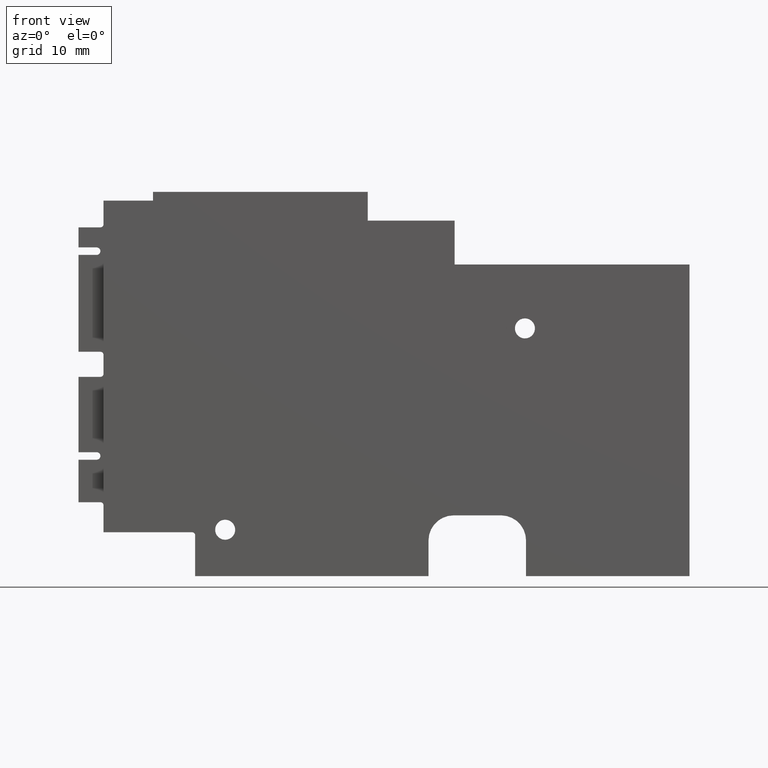
[diagram: clean part render]
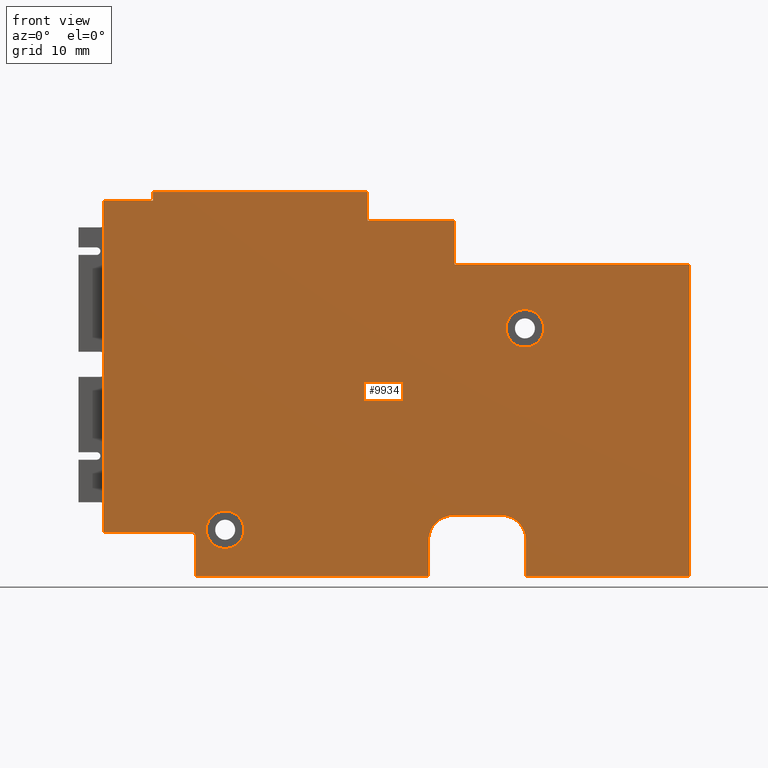
[diagram: same view with one face highlighted and labeled with its STEP entity id]
A machine part, front view. The second image highlights one B-rep face of the part: STEP entity #9934.
In plain terms, the highlighted planar face has unit normal (0, -1, -0).
Its self-contained STEP definition (entity closure, byte-faithful):
#88 = CARTESIAN_POINT ( 'NONE',  ( 399999.9999999998836, -2.449999997205978719, -31.52000000011412340 ) ) ;
#285 = DIRECTION ( 'NONE',  ( 3.965082230805694137E-15, 2.522060485275691362E-29, 1.000000000000000000 ) ) ;
#318 = ORIENTED_EDGE ( 'NONE', *, *, #2596, .T. ) ;
#423 = DIRECTION ( 'NONE',  ( 6.982658610649884917E-15, -1.000000000000000000, -2.466210728113322931E-30 ) ) ;
#425 = CARTESIAN_POINT ( 'NONE',  ( 15.78217238142087808, -2.449999999998925482, 291545.0000000016298 ) ) ;
#511 = CARTESIAN_POINT ( 'NONE',  ( 399999.9999999999418, -2.449999997205978719, 25.19822415473527144 ) ) ;
#527 = DIRECTION ( 'NONE',  ( 6.088502786939280353E-16, 6.717604369232062362E-30, -1.000000000000000000 ) ) ;
#681 = CARTESIAN_POINT ( 'NONE',  ( 1.710812173015827517E-14, -2.449999999999039613, -1.109794827648627142E-30 ) ) ;
#938 = VERTEX_POINT ( 'NONE', #25757 ) ;
#944 = CARTESIAN_POINT ( 'NONE',  ( -25.60330062891227954, -2.449999999999216804, -31.52000000000043656 ) ) ;
#1403 = CARTESIAN_POINT ( 'NONE',  ( 399999.9999999999418, -2.449999997205978719, 29.78260090168305396 ) ) ;
#1556 = LINE ( 'NONE', #3627, #3529 ) ;
#1710 = VERTEX_POINT ( 'NONE', #2856 ) ;
#1759 = ORIENTED_EDGE ( 'NONE', *, *, #12353, .T. ) ;
#1766 = LINE ( 'NONE', #27318, #11667 ) ;
#1793 = ORIENTED_EDGE ( 'NONE', *, *, #13501, .T. ) ;
#1824 = VERTEX_POINT ( 'NONE', #20097 ) ;
#2211 = DIRECTION ( 'NONE',  ( 6.982658610649884917E-15, -1.000000000000000000, -2.466210728113322931E-30 ) ) ;
#2353 = FACE_BOUND ( 'NONE', #12482, .T. ) ;
#2462 = DIRECTION ( 'NONE',  ( -2.026291678658004235E-14, -1.390228196485818964E-28, -1.000000000000000000 ) ) ;
#2596 = EDGE_CURVE ( 'NONE', #22211, #1824, #22719, .T. ) ;
#2624 = VERTEX_POINT ( 'NONE', #26656 ) ;
#2753 = FACE_BOUND ( 'NONE', #5594, .T. ) ;
#2856 = CARTESIAN_POINT ( 'NONE',  ( 1.930106652480390039, -2.449999999999028955, 25.19822415473527144 ) ) ;
#2936 = VECTOR ( 'NONE', #24469, 1000.000000000000000 ) ;
#2981 = EDGE_CURVE ( 'NONE', #21947, #4939, #3669, .T. ) ;
#3286 = DIRECTION ( 'NONE',  ( -1.000000000000000000, -6.982658610649885705E-15, 0.000000000000000000 ) ) ;
#3369 = VERTEX_POINT ( 'NONE', #8429 ) ;
#3507 = CARTESIAN_POINT ( 'NONE',  ( -26.10330062890398040, -2.449999999999224354, -24.51358310241857907 ) ) ;
#3509 = VERTEX_POINT ( 'NONE', #11072 ) ;
#3529 = VECTOR ( 'NONE', #14657, 1000.000000000000000 ) ;
#3627 = CARTESIAN_POINT ( 'NONE',  ( 399999.9999999999418, -2.449999997205978719, 18.19822415473026922 ) ) ;
#3669 = LINE ( 'NONE', #88, #7671 ) ;
#3703 = CARTESIAN_POINT ( 'NONE',  ( 15.78217238022716629, -2.449999999998932143, 18.19822415473026922 ) ) ;
#3737 = EDGE_CURVE ( 'NONE', #9016, #23058, #24857, .T. ) ;
#3762 = ORIENTED_EDGE ( 'NONE', *, *, #10475, .T. ) ;
#3907 = ORIENTED_EDGE ( 'NONE', *, *, #22531, .T. ) ;
#3935 = VERTEX_POINT ( 'NONE', #26797 ) ;
#4021 = CARTESIAN_POINT ( 'NONE',  ( 53.25872753246585489, -2.449999999998661693, 18.19822415473026922 ) ) ;
#4041 = EDGE_CURVE ( 'NONE', #4939, #20488, #24678, .T. ) ;
#4186 = CARTESIAN_POINT ( 'NONE',  ( 23.17835815693734958, -2.449999999998869527, -25.82164184305287336 ) ) ;
#4589 = EDGE_CURVE ( 'NONE', #3369, #3935, #24247, .T. ) ;
#4841 = VERTEX_POINT ( 'NONE', #23562 ) ;
#4939 = VERTEX_POINT ( 'NONE', #20199 ) ;
#5211 = LINE ( 'NONE', #8905, #9046 ) ;
#5301 = CIRCLE ( 'NONE', #19643, 2.999999999999999112 ) ;
#5546 = VERTEX_POINT ( 'NONE', #3703 ) ;
#5591 = ORIENTED_EDGE ( 'NONE', *, *, #26680, .T. ) ;
#5594 = EDGE_LOOP ( 'NONE', ( #16691, #8174 ) ) ;
#5762 = CARTESIAN_POINT ( 'NONE',  ( 1.930106652480390039, -2.449999999999022293, 291545.0000000000000 ) ) ;
#5948 = CARTESIAN_POINT ( 'NONE',  ( 15.62164184304037917, -2.449999999998925482, -21.82164184305287336 ) ) ;
#6164 = EDGE_CURVE ( 'NONE', #938, #1710, #9167, .T. ) ;
#6387 = VERTEX_POINT ( 'NONE', #9377 ) ;
#6612 = CARTESIAN_POINT ( 'NONE',  ( -20.81540116738302970, -2.449999999999184830, -24.11560059209304541 ) ) ;
#6850 = VECTOR ( 'NONE', #16761, 1000.000000000000000 ) ;
#6869 = VECTOR ( 'NONE', #21177, 1000.000000000000000 ) ;
#7242 = AXIS2_PLACEMENT_3D ( 'NONE', #23224, #14553, #16252 ) ;
#7248 = DIRECTION ( 'NONE',  ( 1.000000000000000000, 6.982658610649885705E-15, 0.000000000000000000 ) ) ;
#7589 = CARTESIAN_POINT ( 'NONE',  ( -40.21782761969916464, -2.449999999999313616, 291545.0000000000000 ) ) ;
#7671 = VECTOR ( 'NONE', #25064, 1000.000000000000000 ) ;
#8026 = LINE ( 'NONE', #14261, #26220 ) ;
#8098 = AXIS2_PLACEMENT_3D ( 'NONE', #681, #423, #17733 ) ;
#8174 = ORIENTED_EDGE ( 'NONE', *, *, #15430, .F. ) ;
#8336 = CIRCLE ( 'NONE', #25721, 0.5000000000000004441 ) ;
#8429 = CARTESIAN_POINT ( 'NONE',  ( -17.81540116738303325, -2.449999999999164402, -24.11560059209304541 ) ) ;
#8483 = ORIENTED_EDGE ( 'NONE', *, *, #23591, .F. ) ;
#8741 = CIRCLE ( 'NONE', #26571, 2.999999999999995559 ) ;
#8905 = CARTESIAN_POINT ( 'NONE',  ( -25.60330062300408827, -2.449999999999216804, 291545.0000000081491 ) ) ;
#9016 = VERTEX_POINT ( 'NONE', #15285 ) ;
#9046 = VECTOR ( 'NONE', #2462, 1000.000000000000000 ) ;
#9065 = VECTOR ( 'NONE', #3286, 1000.000000000000000 ) ;
#9167 = LINE ( 'NONE', #511, #12304 ) ;
#9377 = CARTESIAN_POINT ( 'NONE',  ( 23.17835815694024859, -2.449999999998880629, -21.82164184307566757 ) ) ;
#9409 = VERTEX_POINT ( 'NONE', #3507 ) ;
#9934 = ADVANCED_FACE ( 'NONE', ( #2753, #2353, #11285 ), #19834, .T. ) ;
#10142 = EDGE_CURVE ( 'NONE', #23058, #22211, #1766, .T. ) ;
#10154 = VECTOR ( 'NONE', #22798, 1000.000000000000000 ) ;
#10182 = VERTEX_POINT ( 'NONE', #17287 ) ;
#10424 = ORIENTED_EDGE ( 'NONE', *, *, #6164, .T. ) ;
#10455 = EDGE_CURVE ( 'NONE', #11027, #3509, #19302, .T. ) ;
#10475 = EDGE_CURVE ( 'NONE', #1710, #9016, #23091, .T. ) ;
#10485 = CARTESIAN_POINT ( 'NONE',  ( -32.31950703496977439, -2.449999999999267875, 29.78260090168305396 ) ) ;
#10670 = DIRECTION ( 'NONE',  ( 1.000000000000000000, 6.938893903907228378E-15, 0.000000000000000000 ) ) ;
#10704 = ORIENTED_EDGE ( 'NONE', *, *, #24980, .F. ) ;
#10896 = AXIS2_PLACEMENT_3D ( 'NONE', #6612, #15121, #23636 ) ;
#11027 = VERTEX_POINT ( 'NONE', #12707 ) ;
#11072 = CARTESIAN_POINT ( 'NONE',  ( 24.00000000000113332, -2.449999999998871747, 8.000000003283171068 ) ) ;
#11238 = ORIENTED_EDGE ( 'NONE', *, *, #14912, .F. ) ;
#11285 = FACE_OUTER_BOUND ( 'NONE', #21047, .T. ) ;
#11291 = CARTESIAN_POINT ( 'NONE',  ( 399999.9999999999418, -2.449999997205978719, -24.51358310241857907 ) ) ;
#11631 = LINE ( 'NONE', #7589, #2936 ) ;
#11667 = VECTOR ( 'NONE', #27186, 1000.000000000000000 ) ;
#11763 = ORIENTED_EDGE ( 'NONE', *, *, #21920, .T. ) ;
#11799 = EDGE_CURVE ( 'NONE', #5546, #938, #27488, .T. ) ;
#11853 = CARTESIAN_POINT ( 'NONE',  ( 27.17835815696634683, -2.449999999998841993, -31.52000000000043656 ) ) ;
#11939 = VECTOR ( 'NONE', #7248, 1000.000000000000000 ) ;
#12157 = DIRECTION ( 'NONE',  ( 1.000000000000000000, 6.938893903907228378E-15, 0.000000000000000000 ) ) ;
#12254 = VERTEX_POINT ( 'NONE', #15580 ) ;
#12304 = VECTOR ( 'NONE', #15435, 1000.000000000000000 ) ;
#12353 = EDGE_CURVE ( 'NONE', #12254, #21052, #5211, .T. ) ;
#12482 = EDGE_LOOP ( 'NONE', ( #13130, #10704 ) ) ;
#12572 = CARTESIAN_POINT ( 'NONE',  ( -20.81540116738302970, -2.449999999999184830, -24.11560059209304541 ) ) ;
#12707 = CARTESIAN_POINT ( 'NONE',  ( 30.00000000000113332, -2.449999999998830447, 8.000000003283171068 ) ) ;
#12948 = ORIENTED_EDGE ( 'NONE', *, *, #11799, .T. ) ;
#13130 = ORIENTED_EDGE ( 'NONE', *, *, #4589, .F. ) ;
#13242 = LINE ( 'NONE', #11291, #11939 ) ;
#13501 = EDGE_CURVE ( 'NONE', #10182, #21947, #23684, .T. ) ;
#13526 = CARTESIAN_POINT ( 'NONE',  ( 399999.9999999999418, -2.449999997205978719, -21.82164184307566757 ) ) ;
#13727 = CIRCLE ( 'NONE', #23105, 4.000000000000000000 ) ;
#13910 = CARTESIAN_POINT ( 'NONE',  ( 399999.9999999999418, -2.449999997205978719, 28.38076838889946885 ) ) ;
#14053 = EDGE_CURVE ( 'NONE', #20488, #5546, #1556, .T. ) ;
#14261 = CARTESIAN_POINT ( 'NONE',  ( 11.62164184222547192, -2.449999999998953015, 291544.9999999989523 ) ) ;
#14272 = EDGE_CURVE ( 'NONE', #12254, #9409, #8336, .T. ) ;
#14331 = VECTOR ( 'NONE', #24757, 1000.000000000000000 ) ;
#14340 = ORIENTED_EDGE ( 'NONE', *, *, #3737, .T. ) ;
#14544 = DIRECTION ( 'NONE',  ( -2.739826254122683012E-15, -2.159748211314769329E-29, 1.000000000000000000 ) ) ;
#14553 = DIRECTION ( 'NONE',  ( 6.982658610649884917E-15, -1.000000000000000000, -2.466210728113322931E-30 ) ) ;
#14657 = DIRECTION ( 'NONE',  ( -1.000000000000000000, -6.982658610649885705E-15, 0.000000000000000000 ) ) ;
#14704 = EDGE_CURVE ( 'NONE', #2624, #15329, #8026, .T. ) ;
#14912 = EDGE_CURVE ( 'NONE', #16243, #15329, #13727, .T. ) ;
#15120 = DIRECTION ( 'NONE',  ( 6.982658610649884917E-15, -1.000000000000000000, -2.466210728113322931E-30 ) ) ;
#15121 = DIRECTION ( 'NONE',  ( 6.982658610649884917E-15, -1.000000000000000000, -2.466210728113322931E-30 ) ) ;
#15285 = CARTESIAN_POINT ( 'NONE',  ( 1.930106652480390039, -2.449999999999022293, 29.78260090168305396 ) ) ;
#15329 = VERTEX_POINT ( 'NONE', #26469 ) ;
#15430 = EDGE_CURVE ( 'NONE', #3509, #11027, #5301, .T. ) ;
#15435 = DIRECTION ( 'NONE',  ( -1.000000000000000000, -6.982658610649885705E-15, 0.000000000000000000 ) ) ;
#15513 = DIRECTION ( 'NONE',  ( 1.000000000000000000, 6.938893903907222067E-15, 0.000000000000000000 ) ) ;
#15523 = VECTOR ( 'NONE', #22064, 1000.000000000000000 ) ;
#15580 = CARTESIAN_POINT ( 'NONE',  ( -25.60330062892264635, -2.449999999999213252, -25.01358310242868299 ) ) ;
#15989 = ORIENTED_EDGE ( 'NONE', *, *, #22193, .T. ) ;
#16082 = ORIENTED_EDGE ( 'NONE', *, *, #14704, .T. ) ;
#16243 = VERTEX_POINT ( 'NONE', #5948 ) ;
#16252 = DIRECTION ( 'NONE',  ( 1.000000000000000000, 6.938893903907230744E-15, 0.000000000000000000 ) ) ;
#16356 = DIRECTION ( 'NONE',  ( 6.982658610649884917E-15, -1.000000000000000000, -2.466210728113322931E-30 ) ) ;
#16691 = ORIENTED_EDGE ( 'NONE', *, *, #10455, .F. ) ;
#16761 = DIRECTION ( 'NONE',  ( -1.000000000000000000, -6.982658610649885705E-15, 0.000000000000000000 ) ) ;
#17141 = CARTESIAN_POINT ( 'NONE',  ( 27.17835815678881772, -2.449999999998841993, 291544.9999999997672 ) ) ;
#17287 = CARTESIAN_POINT ( 'NONE',  ( 27.17835815693734958, -2.449999999998841993, -25.82164184305287336 ) ) ;
#17411 = VECTOR ( 'NONE', #527, 1000.000000000000000 ) ;
#17733 = DIRECTION ( 'NONE',  ( 1.000000000000000000, 6.982658610649884917E-15, 0.000000000000000000 ) ) ;
#17865 = CARTESIAN_POINT ( 'NONE',  ( 27.00000000000113332, -2.449999999998851319, 8.000000003283171068 ) ) ;
#18092 = ORIENTED_EDGE ( 'NONE', *, *, #10142, .T. ) ;
#18495 = ORIENTED_EDGE ( 'NONE', *, *, #2981, .T. ) ;
#19302 = CIRCLE ( 'NONE', #7242, 2.999999999999999112 ) ;
#19310 = ORIENTED_EDGE ( 'NONE', *, *, #14053, .T. ) ;
#19643 = AXIS2_PLACEMENT_3D ( 'NONE', #17865, #23705, #19694 ) ;
#19694 = DIRECTION ( 'NONE',  ( 1.000000000000000000, 6.938893903907230744E-15, 0.000000000000000000 ) ) ;
#19834 = PLANE ( 'NONE',  #8098 ) ;
#20097 = CARTESIAN_POINT ( 'NONE',  ( -40.21782761975600806, -2.449999999999322942, 28.38076838889946885 ) ) ;
#20199 = CARTESIAN_POINT ( 'NONE',  ( 53.25872753246585489, -2.449999999998670130, -31.52000000000771607 ) ) ;
#20488 = VERTEX_POINT ( 'NONE', #4021 ) ;
#20529 = CARTESIAN_POINT ( 'NONE',  ( 53.25872753246585489, -2.449999999998661693, 291545.0000000000000 ) ) ;
#21047 = EDGE_LOOP ( 'NONE', ( #5591, #15989, #23611, #1759, #3907, #16082, #11238, #11763, #8483, #1793, #18495, #26678, #19310, #12948, #10424, #3762, #14340, #18092, #318 ) ) ;
#21052 = VERTEX_POINT ( 'NONE', #944 ) ;
#21177 = DIRECTION ( 'NONE',  ( 0.000000000000000000, -2.466210728113323281E-30, 1.000000000000000000 ) ) ;
#21910 = CARTESIAN_POINT ( 'NONE',  ( -32.31950703496977439, -2.449999999999258549, 28.38076838889946885 ) ) ;
#21920 = EDGE_CURVE ( 'NONE', #16243, #6387, #22466, .T. ) ;
#21947 = VERTEX_POINT ( 'NONE', #11853 ) ;
#22064 = DIRECTION ( 'NONE',  ( 1.000000000000000000, 6.982658610649885705E-15, 0.000000000000000000 ) ) ;
#22193 = EDGE_CURVE ( 'NONE', #4841, #9409, #13242, .T. ) ;
#22211 = VERTEX_POINT ( 'NONE', #21910 ) ;
#22466 = LINE ( 'NONE', #13526, #15523 ) ;
#22531 = EDGE_CURVE ( 'NONE', #21052, #2624, #24894, .T. ) ;
#22656 = CARTESIAN_POINT ( 'NONE',  ( 399999.9999999998836, -2.449999997205978719, -31.52000000005727998 ) ) ;
#22668 = CIRCLE ( 'NONE', #27145, 4.000000000000000000 ) ;
#22719 = LINE ( 'NONE', #13910, #9065 ) ;
#22778 = DIRECTION ( 'NONE',  ( 1.000000000000000000, 6.938893903907238633E-15, 0.000000000000000000 ) ) ;
#22798 = DIRECTION ( 'NONE',  ( 1.000000000000000000, 6.982658610649885705E-15, -1.864044224952692989E-16 ) ) ;
#22828 = VECTOR ( 'NONE', #285, 1000.000000000000000 ) ;
#23058 = VERTEX_POINT ( 'NONE', #10485 ) ;
#23091 = LINE ( 'NONE', #5762, #14331 ) ;
#23105 = AXIS2_PLACEMENT_3D ( 'NONE', #23427, #2211, #12157 ) ;
#23224 = CARTESIAN_POINT ( 'NONE',  ( 27.00000000000113332, -2.449999999998851319, 8.000000003283171068 ) ) ;
#23427 = CARTESIAN_POINT ( 'NONE',  ( 15.62164184304742598, -2.449999999998925482, -25.82164184305287336 ) ) ;
#23562 = CARTESIAN_POINT ( 'NONE',  ( -40.21782761969916464, -2.449999999999313616, -24.51358310241857907 ) ) ;
#23591 = EDGE_CURVE ( 'NONE', #10182, #6387, #22668, .T. ) ;
#23611 = ORIENTED_EDGE ( 'NONE', *, *, #14272, .F. ) ;
#23636 = DIRECTION ( 'NONE',  ( 1.000000000000000000, 6.938893903907238633E-15, 0.000000000000000000 ) ) ;
#23684 = LINE ( 'NONE', #17141, #17411 ) ;
#23705 = DIRECTION ( 'NONE',  ( 6.982658610649884917E-15, -1.000000000000000000, -2.466210728113322931E-30 ) ) ;
#24247 = CIRCLE ( 'NONE', #10896, 2.999999999999995559 ) ;
#24469 = DIRECTION ( 'NONE',  ( 0.000000000000000000, 2.466210728113323281E-30, -1.000000000000000000 ) ) ;
#24678 = LINE ( 'NONE', #20529, #6869 ) ;
#24757 = DIRECTION ( 'NONE',  ( 0.000000000000000000, -2.466210728113323281E-30, 1.000000000000000000 ) ) ;
#24857 = LINE ( 'NONE', #1403, #6850 ) ;
#24894 = LINE ( 'NONE', #22656, #10154 ) ;
#24980 = EDGE_CURVE ( 'NONE', #3935, #3369, #8741, .T. ) ;
#25064 = DIRECTION ( 'NONE',  ( 1.000000000000000000, 6.982658610649885705E-15, -2.660581145917549881E-16 ) ) ;
#25721 = AXIS2_PLACEMENT_3D ( 'NONE', #26414, #26287, #15513 ) ;
#25757 = CARTESIAN_POINT ( 'NONE',  ( 15.78217238026497959, -2.449999999998925482, 25.19822415473527144 ) ) ;
#26220 = VECTOR ( 'NONE', #14544, 1000.000000000000000 ) ;
#26287 = DIRECTION ( 'NONE',  ( 6.982658610649884917E-15, -1.000000000000000000, -2.466210728113322931E-30 ) ) ;
#26414 = CARTESIAN_POINT ( 'NONE',  ( -26.10330062892264635, -2.449999999999216804, -25.01358310242868299 ) ) ;
#26469 = CARTESIAN_POINT ( 'NONE',  ( 11.62164184302432623, -2.449999999998953015, -25.82164184303792354 ) ) ;
#26571 = AXIS2_PLACEMENT_3D ( 'NONE', #12572, #16356, #22778 ) ;
#26656 = CARTESIAN_POINT ( 'NONE',  ( 11.62164184302127978, -2.449999999998961453, -31.51999999998272273 ) ) ;
#26678 = ORIENTED_EDGE ( 'NONE', *, *, #4041, .T. ) ;
#26680 = EDGE_CURVE ( 'NONE', #1824, #4841, #11631, .T. ) ;
#26797 = CARTESIAN_POINT ( 'NONE',  ( -23.81540116738302615, -2.449999999999205702, -24.11560059209304541 ) ) ;
#27145 = AXIS2_PLACEMENT_3D ( 'NONE', #4186, #15120, #10670 ) ;
#27186 = DIRECTION ( 'NONE',  ( 0.000000000000000000, 2.466210728113323281E-30, -1.000000000000000000 ) ) ;
#27318 = CARTESIAN_POINT ( 'NONE',  ( -32.31950703496977439, -2.449999999999258549, 291545.0000000000000 ) ) ;
#27488 = LINE ( 'NONE', #425, #22828 ) ;